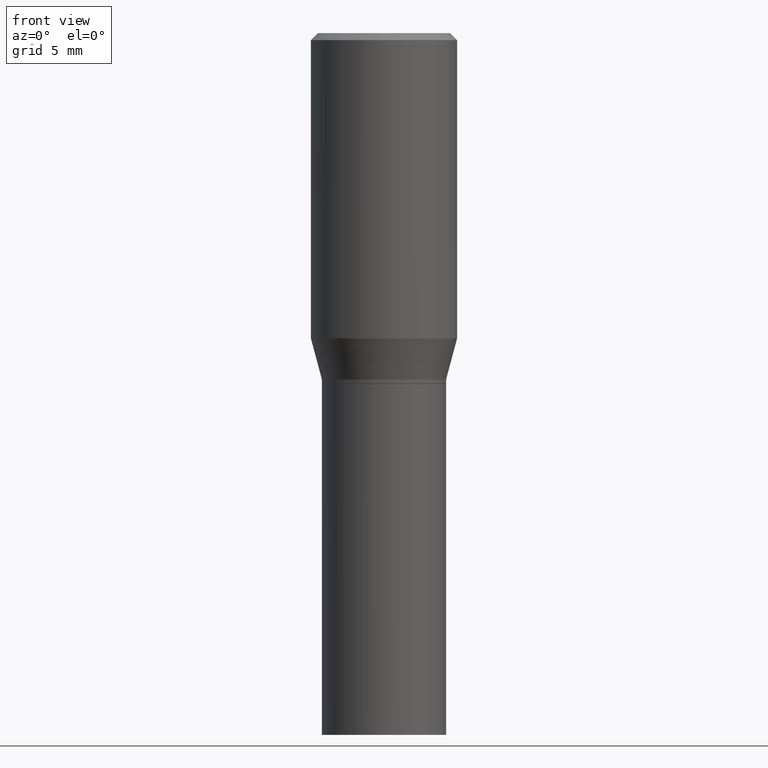
[diagram: clean part render]
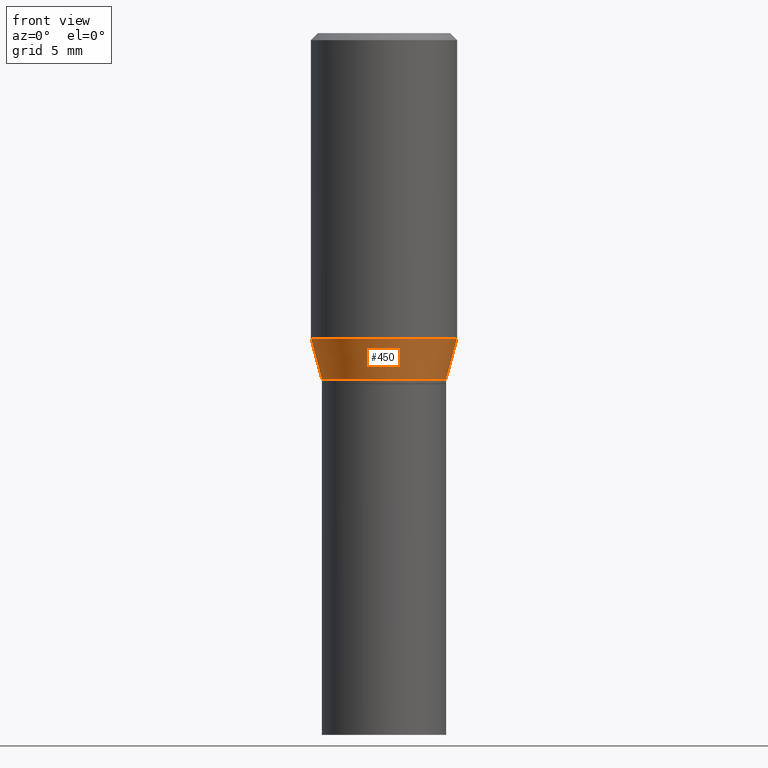
[diagram: same view with one face highlighted and labeled with its STEP entity id]
A machine part, front view. The second image highlights one B-rep face of the part: STEP entity #450.
In plain terms, the highlighted conical surface has half-angle 15 deg.
Its self-contained STEP definition (entity closure, byte-faithful):
#7 = AXIS2_PLACEMENT_3D ( 'NONE', #216, #399, #40 ) ;
#17 = VERTEX_POINT ( 'NONE', #20 ) ;
#20 = CARTESIAN_POINT ( 'NONE',  ( 0.1562500000000000000, -3.369221563289251454E-15, -0.6524834085625104141 ) ) ;
#26 = CARTESIAN_POINT ( 'NONE',  ( 1.809646916577001463E-29, -2.583696190743928228E-15, -0.7400000000000002132 ) ) ;
#28 = EDGE_CURVE ( 'NONE', #194, #17, #376, .T. ) ;
#40 = DIRECTION ( 'NONE',  ( 1.000000000000000000, -6.982962677686265133E-15, 0.000000000000000000 ) ) ;
#46 = EDGE_CURVE ( 'NONE', #161, #322, #353, .T. ) ;
#72 = EDGE_CURVE ( 'NONE', #161, #194, #201, .T. ) ;
#85 = CARTESIAN_POINT ( 'NONE',  ( 0.1328000000000000569, -3.511033634340664450E-15, -0.7400000000000002132 ) ) ;
#87 = VECTOR ( 'NONE', #377, 39.37007874015748143 ) ;
#90 = CARTESIAN_POINT ( 'NONE',  ( 0.1328000000000000569, -3.511033634340664450E-15, -0.7400000000000002132 ) ) ;
#96 = CARTESIAN_POINT ( 'NONE',  ( -0.1328000000000000569, -1.404003028965065357E-15, -0.7400000000000002132 ) ) ;
#124 = CARTESIAN_POINT ( 'NONE',  ( -0.1562500000000000000, -1.167910620275616332E-15, -0.6524834085625104141 ) ) ;
#134 = VECTOR ( 'NONE', #410, 39.37007874015748143 ) ;
#161 = VERTEX_POINT ( 'NONE', #96 ) ;
#163 = CARTESIAN_POINT ( 'NONE',  ( -0.1328000000000000569, -1.640095437654514777E-15, -0.7400000000000002132 ) ) ;
#168 = DIRECTION ( 'NONE',  ( -2.445468806185136597E-29, 3.491481338843145583E-15, 1.000000000000000000 ) ) ;
#194 = VERTEX_POINT ( 'NONE', #124 ) ;
#197 = LINE ( 'NONE', #90, #87 ) ;
#201 = LINE ( 'NONE', #163, #134 ) ;
#209 = AXIS2_PLACEMENT_3D ( 'NONE', #26, #168, #460 ) ;
#216 = CARTESIAN_POINT ( 'NONE',  ( 1.595627822192971094E-29, -2.278133644900773069E-15, -0.6524834085625104141 ) ) ;
#229 = CONICAL_SURFACE ( 'NONE', #445, 0.1328000000000000569, 0.2617993877991501850 ) ;
#283 = DIRECTION ( 'NONE',  ( -2.445468806185136597E-29, 3.491481338843145583E-15, 1.000000000000000000 ) ) ;
#290 = ORIENTED_EDGE ( 'NONE', *, *, #46, .T. ) ;
#295 = ORIENTED_EDGE ( 'NONE', *, *, #28, .F. ) ;
#322 = VERTEX_POINT ( 'NONE', #85 ) ;
#323 = FACE_OUTER_BOUND ( 'NONE', #350, .T. ) ;
#339 = ORIENTED_EDGE ( 'NONE', *, *, #424, .T. ) ;
#350 = EDGE_LOOP ( 'NONE', ( #351, #290, #339, #295 ) ) ;
#351 = ORIENTED_EDGE ( 'NONE', *, *, #72, .F. ) ;
#353 = CIRCLE ( 'NONE', #209, 0.1328000000000000569 ) ;
#376 = CIRCLE ( 'NONE', #7, 0.1562500000000000000 ) ;
#377 = DIRECTION ( 'NONE',  ( 0.2588190451025214611, 1.565188264969620982E-15, 0.9659258262890679791 ) ) ;
#399 = DIRECTION ( 'NONE',  ( -2.445468806185136597E-29, 3.491481338843145583E-15, 1.000000000000000000 ) ) ;
#410 = DIRECTION ( 'NONE',  ( -0.2588190451025214611, 5.211531920934550253E-15, 0.9659258262890679791 ) ) ;
#424 = EDGE_CURVE ( 'NONE', #322, #17, #197, .T. ) ;
#431 = CARTESIAN_POINT ( 'NONE',  ( 1.809646916577001463E-29, -2.583696190743928228E-15, -0.7400000000000002132 ) ) ;
#437 = DIRECTION ( 'NONE',  ( 1.000000000000000000, -6.982962677686265133E-15, 0.000000000000000000 ) ) ;
#445 = AXIS2_PLACEMENT_3D ( 'NONE', #431, #283, #437 ) ;
#450 = ADVANCED_FACE ( 'NONE', ( #323 ), #229, .T. ) ;
#460 = DIRECTION ( 'NONE',  ( 1.000000000000000000, -6.982962677686265133E-15, 0.000000000000000000 ) ) ;